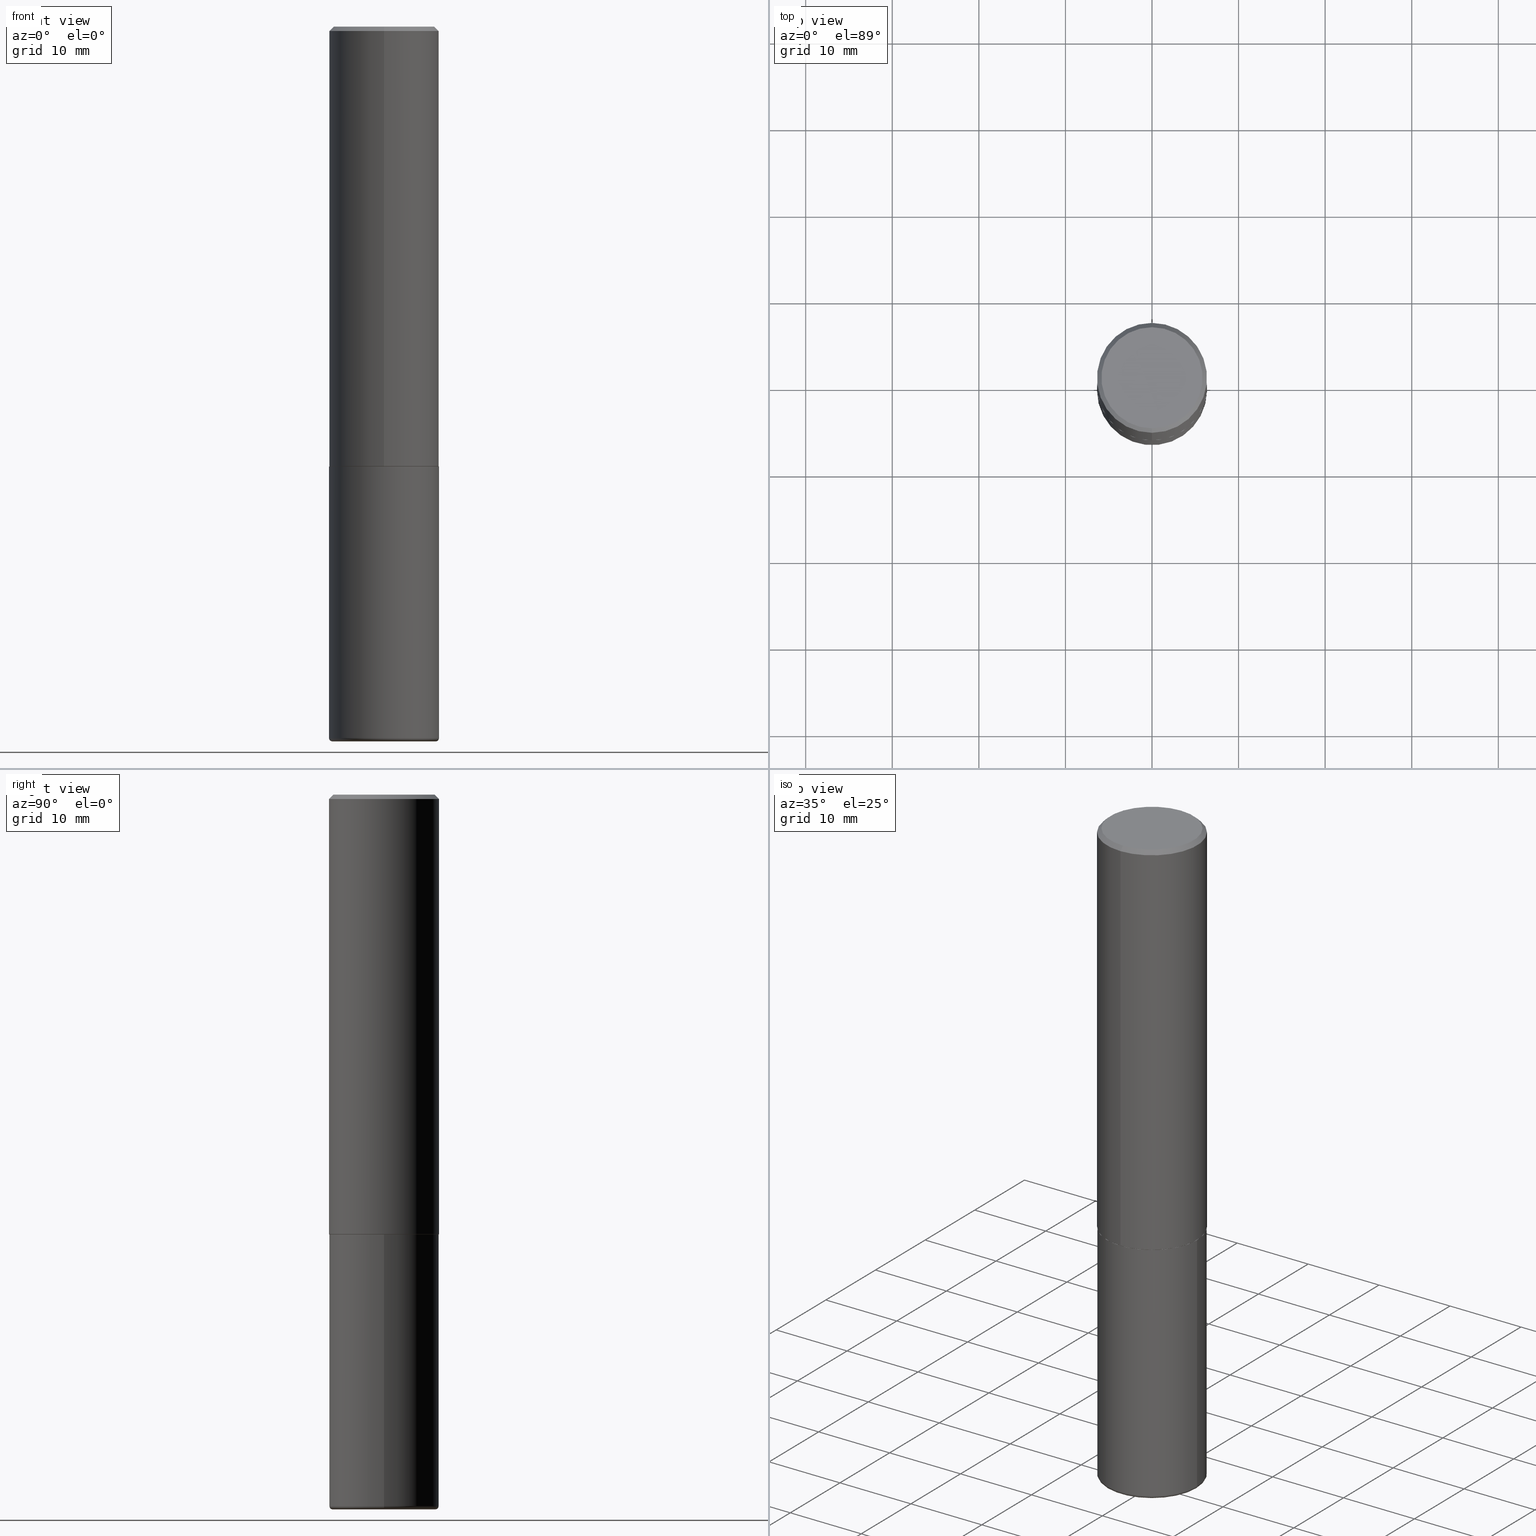
[diagram: canonical four-view strip — front | top / right | iso, engineering-drawing reading convention]
A machine part, canonical four-view strip (front | top / right | iso — engineering-drawing reading convention). The complete STEP part file that produces these views, byte-faithful:
ISO-10303-21;
HEADER;
FILE_DESCRIPTION (( 'STEP AP203' ),
    '1' );
FILE_NAME ('37191.STEP',
    '2024-03-01T21:38:02',
    ( '' ),
    ( '' ),
    'SwSTEP 2.0',
    'SolidWorks 2023',
    '' );
FILE_SCHEMA (( 'CONFIG_CONTROL_DESIGN' ));
ENDSEC;

DATA;
#1 = DATE_AND_TIME ( #61, #241 ) ;
#2 = FACE_OUTER_BOUND ( 'NONE', #95, .T. ) ;
#3 = ADVANCED_FACE ( 'NONE', ( #99 ), #407, .T. ) ;
#4 = FACE_OUTER_BOUND ( 'NONE', #375, .T. ) ;
#5 = CARTESIAN_POINT ( 'NONE',  ( 7.911091588008916622E-29, -1.129494213115757616E-14, -3.234999999999999876 ) ) ;
#6 = ADVANCED_FACE ( 'NONE', ( #174 ), #24, .T. ) ;
#7 = FACE_OUTER_BOUND ( 'NONE', #22, .T. ) ;
#8 = ORIENTED_EDGE ( 'NONE', *, *, #120, .T. ) ;
#9 = COORDINATED_UNIVERSAL_TIME_OFFSET ( 5, 0, .BEHIND. ) ;
#10 = DIRECTION ( 'NONE',  ( 1.000000000000000000, -6.982962677686266711E-15, 0.000000000000000000 ) ) ;
#11 = DIRECTION ( 'NONE',  ( -6.982962677686265133E-15, -1.000000000000000000, 3.291383124896702687E-15 ) ) ;
#12 = ORIENTED_EDGE ( 'NONE', *, *, #260, .T. ) ;
#13 =( GEOMETRIC_REPRESENTATION_CONTEXT ( 3 ) GLOBAL_UNCERTAINTY_ASSIGNED_CONTEXT ( ( #243 ) ) GLOBAL_UNIT_ASSIGNED_CONTEXT ( ( #216, #339, #225 ) ) REPRESENTATION_CONTEXT ( 'NONE', 'WORKASPACE' ) );
#14 = CARTESIAN_POINT ( 'NONE',  ( 1.745740669421566875E-15, 0.2499999999999999167, -0.02000000000000093023 ) ) ;
#15 = DIRECTION ( 'NONE',  ( 2.444914538755677752E-29, -3.492275081349073750E-15, -1.000000000000000000 ) ) ;
#16 = CARTESIAN_POINT ( 'NONE',  ( 4.887384162972599193E-29, -6.981057887616797828E-15, -1.998999999999999888 ) ) ;
#17 = EDGE_LOOP ( 'NONE', ( #228, #312, #143, #389 ) ) ;
#18 = CARTESIAN_POINT ( 'NONE',  ( 4.887384162972599193E-29, -6.981057887616797828E-15, -1.998999999999999888 ) ) ;
#19 = VECTOR ( 'NONE', #266, 39.37007874015748143 ) ;
#20 = CC_DESIGN_APPROVAL ( #55, ( #125 ) ) ;
#21 = LINE ( 'NONE', #142, #394 ) ;
#22 = EDGE_LOOP ( 'NONE', ( #376, #365, #33, #104 ) ) ;
#23 = DIRECTION ( 'NONE',  ( -6.982962677686265922E-15, -1.000000000000000000, 3.492275081349073750E-15 ) ) ;
#24 = PLANE ( 'NONE',  #80 ) ;
#25 = DIRECTION ( 'NONE',  ( -2.445468806185136597E-29, 3.491481338843145583E-15, 1.000000000000000000 ) ) ;
#26 = APPROVAL_PERSON_ORGANIZATION ( #310, #347, #170 ) ;
#27 = PERSON_AND_ORGANIZATION ( #337, #278 ) ;
#28 = PERSON_AND_ORGANIZATION ( #337, #278 ) ;
#29 = DIRECTION ( 'NONE',  ( -2.445468806185136597E-29, 3.491481338843145583E-15, 1.000000000000000000 ) ) ;
#30 = ORIENTED_EDGE ( 'NONE', *, *, #397, .F. ) ;
#31 = CALENDAR_DATE ( 2024, 1, 3 ) ;
#32 = CIRCLE ( 'NONE', #239, 0.2500000000000000000 ) ;
#33 = ORIENTED_EDGE ( 'NONE', *, *, #397, .T. ) ;
#34 = COORDINATED_UNIVERSAL_TIME_OFFSET ( 5, 0, .BEHIND. ) ;
#35 = DIRECTION ( 'NONE',  ( -2.444914538755677752E-29, 3.492275081349073750E-15, 1.000000000000000000 ) ) ;
#36 = EDGE_LOOP ( 'NONE', ( #167, #79, #285, #295 ) ) ;
#37 = DIRECTION ( 'NONE',  ( 1.000000000000000000, -6.982962677686266711E-15, 0.000000000000000000 ) ) ;
#38 = DIRECTION ( 'NONE',  ( -2.444914538755677752E-29, 3.492275081349073750E-15, 1.000000000000000000 ) ) ;
#39 = ORIENTED_EDGE ( 'NONE', *, *, #333, .T. ) ;
#40 = EDGE_CURVE ( 'NONE', #237, #353, #32, .T. ) ;
#41 = CONICAL_SURFACE ( 'NONE', #373, 0.2500000000000000000, 0.7853981633974468357 ) ;
#42 = AXIS2_PLACEMENT_3D ( 'NONE', #89, #212, #244 ) ;
#43 = DIRECTION ( 'NONE',  ( 6.982962677686265922E-15, 1.000000000000000000, -3.500180241882337261E-15 ) ) ;
#44 = ORIENTED_EDGE ( 'NONE', *, *, #307, .T. ) ;
#45 = APPROVAL_DATE_TIME ( #153, #280 ) ;
#46 = CARTESIAN_POINT ( 'NONE',  ( 0.000000000000000000, 0.000000000000000000, 0.000000000000000000 ) ) ;
#47 = DIRECTION ( 'NONE',  ( -2.445468806185136597E-29, 3.491481338843145583E-15, 1.000000000000000000 ) ) ;
#48 = EDGE_CURVE ( 'NONE', #288, #229, #150, .T. ) ;
#49 = ORIENTED_EDGE ( 'NONE', *, *, #48, .T. ) ;
#50 = LINE ( 'NONE', #403, #274 ) ;
#51 = PRODUCT_RELATED_PRODUCT_CATEGORY ( 'detail', '', ( #406 ) ) ;
#52 = DIRECTION ( 'NONE',  ( -2.444914538755677752E-29, 3.492275081349073750E-15, 1.000000000000000000 ) ) ;
#53 = CARTESIAN_POINT ( 'NONE',  ( 0.000000000000000000, 0.000000000000000000, 0.000000000000000000 ) ) ;
#54 = AXIS2_PLACEMENT_3D ( 'NONE', #16, #242, #332 ) ;
#55 = APPROVAL ( #98, 'UNSPECIFIED' ) ;
#56 = DIRECTION ( 'NONE',  ( -2.445468806185136597E-29, 3.491481338843145583E-15, 1.000000000000000000 ) ) ;
#57 = ADVANCED_FACE ( 'NONE', ( #345 ), #41, .T. ) ;
#58 = PERSON_AND_ORGANIZATION ( #337, #278 ) ;
#59 = AXIS2_PLACEMENT_3D ( 'NONE', #256, #15, #43 ) ;
#60 = VECTOR ( 'NONE', #131, 39.37007874015748143 ) ;
#61 = CALENDAR_DATE ( 2024, 1, 3 ) ;
#62 = DIRECTION ( 'NONE',  ( -2.444914538755678032E-29, 3.492275081349073750E-15, 1.000000000000000000 ) ) ;
#63 = ORIENTED_EDGE ( 'NONE', *, *, #206, .F. ) ;
#64 = PERSON_AND_ORGANIZATION_ROLE ( 'design_owner' ) ;
#65 = CARTESIAN_POINT ( 'NONE',  ( 0.2350000000000000144, -1.298831058049649931E-14, -3.250000000000000444 ) ) ;
#66 = VECTOR ( 'NONE', #292, 39.37007874015748143 ) ;
#67 = EDGE_CURVE ( 'NONE', #191, #196, #224, .T. ) ;
#68 = EDGE_LOOP ( 'NONE', ( #269, #359 ) ) ;
#69 = ORIENTED_EDGE ( 'NONE', *, *, #200, .F. ) ;
#70 = CARTESIAN_POINT ( 'NONE',  ( 4.889829077511355503E-29, -6.984550162698146711E-15, -2.000000000000000000 ) ) ;
#71 = ORIENTED_EDGE ( 'NONE', *, *, #253, .F. ) ;
#72 = APPROVAL_DATE_TIME ( #1, #55 ) ;
#73 = AXIS2_PLACEMENT_3D ( 'NONE', #179, #25, #121 ) ;
#74 = DIRECTION ( 'NONE',  ( 2.444914538755677191E-29, -3.492275081349073750E-15, -1.000000000000000000 ) ) ;
#75 = ORIENTED_EDGE ( 'NONE', *, *, #48, .F. ) ;
#76 = CARTESIAN_POINT ( 'NONE',  ( 1.776356839400251254E-15, 0.2500000000000001110, -8.730687703372688319E-16 ) ) ;
#77 = VERTEX_POINT ( 'NONE', #190 ) ;
#78 = DIRECTION ( 'NONE',  ( 6.982962677686265922E-15, 1.000000000000000000, -3.492275081349073750E-15 ) ) ;
#79 = ORIENTED_EDGE ( 'NONE', *, *, #148, .T. ) ;
#80 = AXIS2_PLACEMENT_3D ( 'NONE', #218, #211, #335 ) ;
#81 = TOROIDAL_SURFACE ( 'NONE', #246, 0.2349999999999999867, 0.01500000000000042098 ) ;
#82 = DIRECTION ( 'NONE',  ( -2.445468806185136877E-29, 3.491481338843145188E-15, 1.000000000000000000 ) ) ;
#83 = CARTESIAN_POINT ( 'NONE',  ( 1.776356839400276103E-15, 0.2499999999999933109, -1.999000000000000776 ) ) ;
#84 = ADVANCED_FACE ( 'NONE', ( #4 ), #284, .F. ) ;
#85 = CARTESIAN_POINT ( 'NONE',  ( -1.738757706743831162E-15, -0.2490000000000069935, -1.999999999999999112 ) ) ;
#86 = VECTOR ( 'NONE', #62, 39.37007874015748143 ) ;
#87 = LENGTH_MEASURE_WITH_UNIT ( LENGTH_MEASURE( 0.02539999999999999897 ), #117 );
#88 = AXIS2_PLACEMENT_3D ( 'NONE', #319, #173, #357 ) ;
#89 = CARTESIAN_POINT ( 'NONE',  ( 4.889829077511355503E-29, -6.984550162698146711E-15, -2.000000000000000000 ) ) ;
#90 = PERSON_AND_ORGANIZATION ( #337, #278 ) ;
#91 = CC_DESIGN_PERSON_AND_ORGANIZATION_ASSIGNMENT ( #58, #249, ( #125 ) ) ;
#92 = DIRECTION ( 'NONE',  ( 0.000000000000000000, 0.000000000000000000, 1.000000000000000000 ) ) ;
#93 = LOCAL_TIME ( 16, 38, 2.000000000000000000, #219 ) ;
#94 = DIRECTION ( 'NONE',  ( 6.982962677686265922E-15, 1.000000000000000000, -3.500180241882337261E-15 ) ) ;
#95 = EDGE_LOOP ( 'NONE', ( #395, #383, #12, #100 ) ) ;
#96 = PERSON_AND_ORGANIZATION_ROLE ( 'creator' ) ;
#97 = CARTESIAN_POINT ( 'NONE',  ( 4.889829077511355503E-29, -6.984550162698146711E-15, -2.000000000000000000 ) ) ;
#98 = APPROVAL_STATUS ( 'not_yet_approved' ) ;
#99 = FACE_OUTER_BOUND ( 'NONE', #414, .T. ) ;
#100 = ORIENTED_EDGE ( 'NONE', *, *, #162, .F. ) ;
#101 = CARTESIAN_POINT ( 'NONE',  ( 4.889829077511355503E-29, -6.984550162698146711E-15, -2.000000000000000000 ) ) ;
#102 = VERTEX_POINT ( 'NONE', #127 ) ;
#103 = DIRECTION ( 'NONE',  ( 1.000000000000000000, -6.982962677686270655E-15, 0.000000000000000000 ) ) ;
#104 = ORIENTED_EDGE ( 'NONE', *, *, #247, .F. ) ;
#105 = AXIS2_PLACEMENT_3D ( 'NONE', #183, #275, #276 ) ;
#106 = FACE_OUTER_BOUND ( 'NONE', #17, .T. ) ;
#107 = VERTEX_POINT ( 'NONE', #65 ) ;
#108 = EDGE_CURVE ( 'NONE', #102, #272, #135, .T. ) ;
#109 = FACE_OUTER_BOUND ( 'NONE', #387, .T. ) ;
#110 = ORIENTED_EDGE ( 'NONE', *, *, #194, .T. ) ;
#111 = FACE_OUTER_BOUND ( 'NONE', #294, .T. ) ;
#112 = ORIENTED_EDGE ( 'NONE', *, *, #200, .T. ) ;
#113 = CIRCLE ( 'NONE', #88, 0.01500000000000042098 ) ;
#114 = DIRECTION ( 'NONE',  ( -6.982962677686265922E-15, -1.000000000000000000, 3.492275081349073750E-15 ) ) ;
#115 = ADVANCED_FACE ( 'NONE', ( #2 ), #207, .T. ) ;
#116 = CARTESIAN_POINT ( 'NONE',  ( -1.646519519465166770E-15, -0.2299999999999998990, 9.015816167589595013E-16 ) ) ;
#117 =( LENGTH_UNIT ( ) NAMED_UNIT ( * ) SI_UNIT ( $, .METRE. ) );
#118 = CARTESIAN_POINT ( 'NONE',  ( 0.000000000000000000, 0.000000000000000000, 0.000000000000000000 ) ) ;
#119 = AXIS2_PLACEMENT_3D ( 'NONE', #101, #236, #306 ) ;
#120 = EDGE_CURVE ( 'NONE', #353, #237, #367, .T. ) ;
#121 = DIRECTION ( 'NONE',  ( 1.000000000000000000, -6.982962677686270655E-15, 0.000000000000000000 ) ) ;
#122 = APPLICATION_PROTOCOL_DEFINITION ( 'international standard', 'config_control_design', 1994, #149 ) ;
#123 = EDGE_CURVE ( 'NONE', #130, #107, #308, .T. ) ;
#124 = DIRECTION ( 'NONE',  ( 1.000000000000000000, -6.982962677686269077E-15, 0.000000000000000000 ) ) ;
#125 = PRODUCT_DEFINITION_FORMATION_WITH_SPECIFIED_SOURCE ( 'ANY', '', #406, .NOT_KNOWN. ) ;
#126 = ORIENTED_EDGE ( 'NONE', *, *, #291, .T. ) ;
#127 = CARTESIAN_POINT ( 'NONE',  ( 1.675911042644703774E-15, 0.2299999999999998990, -7.048649206616136781E-16 ) ) ;
#128 = CIRCLE ( 'NONE', #105, 0.2500000000000000000 ) ;
#129 = LINE ( 'NONE', #14, #166 ) ;
#130 = VERTEX_POINT ( 'NONE', #134 ) ;
#131 = DIRECTION ( 'NONE',  ( 5.024295867788490741E-15, 0.7071067811866103003, 0.7071067811864847341 ) ) ;
#132 = ORIENTED_EDGE ( 'NONE', *, *, #220, .T. ) ;
#133 = CARTESIAN_POINT ( 'NONE',  ( 0.000000000000000000, 0.000000000000000000, 0.000000000000000000 ) ) ;
#134 = CARTESIAN_POINT ( 'NONE',  ( -0.2350000000000000144, -9.598062106980653841E-15, -3.250000000000000444 ) ) ;
#135 = CIRCLE ( 'NONE', #384, 0.2299999999999998990 ) ;
#136 = AXIS2_PLACEMENT_3D ( 'NONE', #405, #402, #145 ) ;
#137 = CARTESIAN_POINT ( 'NONE',  ( -0.2500000000000002220, -9.518585291757322543E-15, -3.234999999999999876 ) ) ;
#138 = CC_DESIGN_DATE_AND_TIME_ASSIGNMENT ( #287, #223, ( #409 ) ) ;
#139 = CYLINDRICAL_SURFACE ( 'NONE', #283, 0.2500000000000000000 ) ;
#140 = ORIENTED_EDGE ( 'NONE', *, *, #182, .T. ) ;
#141 = ADVANCED_BREP_SHAPE_REPRESENTATION ( '37191', ( #289, #154, #331 ), #13 ) ;
#142 = CARTESIAN_POINT ( 'NONE',  ( -1.715124499442882299E-15, -0.2500000000000000555, -0.01999999999999918163 ) ) ;
#143 = ORIENTED_EDGE ( 'NONE', *, *, #206, .T. ) ;
#144 = AXIS2_PLACEMENT_3D ( 'NONE', #118, #56, #336 ) ;
#145 = DIRECTION ( 'NONE',  ( 1.000000000000000000, -6.982962677686201235E-15, 0.000000000000000000 ) ) ;
#146 = CYLINDRICAL_SURFACE ( 'NONE', #144, 0.2500000000000000000 ) ;
#147 = DIRECTION ( 'NONE',  ( -2.444914538755677191E-29, 3.492275081349073750E-15, 1.000000000000000000 ) ) ;
#148 = EDGE_CURVE ( 'NONE', #318, #316, #355, .T. ) ;
#149 = APPLICATION_CONTEXT ( 'configuration controlled 3d designs of mechanical parts and assemblies' ) ;
#150 = CIRCLE ( 'NONE', #164, 0.2500000000000000555 ) ;
#151 = CARTESIAN_POINT ( 'NONE',  ( 1.745740669421566875E-15, 0.2499999999999999167, -0.02000000000000093023 ) ) ;
#152 = AXIS2_PLACEMENT_3D ( 'NONE', #329, #271, #232 ) ;
#153 = DATE_AND_TIME ( #201, #93 ) ;
#154 = MANIFOLD_SOLID_BREP ( 'Body-Move/Copy2[2]', #392 ) ;
#155 = ADVANCED_FACE ( 'NONE', ( #111 ), #81, .T. ) ;
#156 = DIRECTION ( 'NONE',  ( 1.000000000000000000, 0.000000000000000000, 0.000000000000000000 ) ) ;
#157 = DIRECTION ( 'NONE',  ( -2.445468806185136597E-29, 3.491481338843145583E-15, 1.000000000000000000 ) ) ;
#158 = EDGE_LOOP ( 'NONE', ( #320, #199, #165, #39 ) ) ;
#159 = CIRCLE ( 'NONE', #119, 0.2489999999999999991 ) ;
#160 = DIRECTION ( 'NONE',  ( -6.982962677686265922E-15, -1.000000000000000000, 3.492275081349073750E-15 ) ) ;
#161 = ORIENTED_EDGE ( 'NONE', *, *, #307, .F. ) ;
#162 = EDGE_CURVE ( 'NONE', #102, #316, #129, .T. ) ;
#163 = LINE ( 'NONE', #363, #240 ) ;
#164 = AXIS2_PLACEMENT_3D ( 'NONE', #413, #157, #124 ) ;
#165 = ORIENTED_EDGE ( 'NONE', *, *, #162, .T. ) ;
#166 = VECTOR ( 'NONE', #360, 39.37007874015748143 ) ;
#167 = ORIENTED_EDGE ( 'NONE', *, *, #327, .T. ) ;
#168 = CC_DESIGN_APPROVAL ( #280, ( #409 ) ) ;
#169 = CARTESIAN_POINT ( 'NONE',  ( 7.947773620101696182E-29, -1.134731435124022600E-14, -3.250000000000000444 ) ) ;
#170 = APPROVAL_ROLE ( '' ) ;
#171 = PRODUCT_DEFINITION ( 'UNKNOWN', '', #125, #187 ) ;
#172 = DIRECTION ( 'NONE',  ( 1.000000000000000000, -6.982962677686269077E-15, 0.000000000000000000 ) ) ;
#173 = DIRECTION ( 'NONE',  ( 7.105427357601001859E-15, 1.000000000000000000, -3.491481338843145583E-15 ) ) ;
#174 = FACE_OUTER_BOUND ( 'NONE', #380, .T. ) ;
#175 = EDGE_LOOP ( 'NONE', ( #71, #69 ) ) ;
#176 = FACE_OUTER_BOUND ( 'NONE', #68, .T. ) ;
#177 = ADVANCED_FACE ( 'NONE', ( #176 ), #230, .F. ) ;
#178 = PLANE ( 'NONE',  #314 ) ;
#179 = CARTESIAN_POINT ( 'NONE',  ( 7.947773620101696182E-29, -1.134731435124022600E-14, -3.250000000000000444 ) ) ;
#180 = CARTESIAN_POINT ( 'NONE',  ( 4.890937612370273194E-29, -6.982962677686291165E-15, -2.000000000000000000 ) ) ;
#181 = AXIS2_PLACEMENT_3D ( 'NONE', #46, #38, #270 ) ;
#182 = EDGE_CURVE ( 'NONE', #229, #353, #163, .T. ) ;
#183 = CARTESIAN_POINT ( 'NONE',  ( 4.889829077511369061E-31, -6.984550162698166284E-17, -0.02000000000000005593 ) ) ;
#184 = CALENDAR_DATE ( 2024, 1, 3 ) ;
#185 = AXIS2_PLACEMENT_3D ( 'NONE', #169, #396, #103 ) ;
#186 = ADVANCED_FACE ( 'NONE', ( #106 ), #139, .T. ) ;
#187 = DESIGN_CONTEXT ( 'detailed design', #149, 'design' ) ;
#188 = PRODUCT_DEFINITION_SHAPE ( 'NONE', 'NONE',  #171 ) ;
#189 = APPROVAL_DATE_TIME ( #250, #347 ) ;
#190 = CARTESIAN_POINT ( 'NONE',  ( 1.772804125721499264E-15, 0.2489999999999930047, -2.000000000000000888 ) ) ;
#191 = VERTEX_POINT ( 'NONE', #205 ) ;
#192 = CALENDAR_DATE ( 2024, 1, 3 ) ;
#193 = CARTESIAN_POINT ( 'NONE',  ( -2.404777551521915738E-45, 3.434944079330397096E-31, 9.835834804867292393E-17 ) ) ;
#194 = EDGE_CURVE ( 'NONE', #77, #318, #328, .T. ) ;
#195 = ORIENTED_EDGE ( 'NONE', *, *, #148, .F. ) ;
#196 = VERTEX_POINT ( 'NONE', #325 ) ;
#197 = DIRECTION ( 'NONE',  ( -6.982962677686265133E-15, -1.000000000000000000, 3.291383124896702687E-15 ) ) ;
#198 = CIRCLE ( 'NONE', #54, 0.2500000000000002220 ) ;
#199 = ORIENTED_EDGE ( 'NONE', *, *, #108, .F. ) ;
#200 = EDGE_CURVE ( 'NONE', #77, #326, #293, .T. ) ;
#201 = CALENDAR_DATE ( 2024, 1, 3 ) ;
#202 = DIRECTION ( 'NONE',  ( 1.000000000000000000, -6.982962677686266711E-15, 4.876176775795935793E-29 ) ) ;
#203 = DIMENSIONAL_EXPONENTS ( 1.000000000000000000, 0.000000000000000000, 0.000000000000000000, 0.000000000000000000, 0.000000000000000000, 0.000000000000000000, 0.000000000000000000 ) ;
#204 = DIRECTION ( 'NONE',  ( -2.445468806185136597E-29, 3.491481338843145583E-15, 1.000000000000000000 ) ) ;
#205 = CARTESIAN_POINT ( 'NONE',  ( -1.745740669421519346E-15, -0.2500000000000072164, -1.998999999999999000 ) ) ;
#206 = EDGE_CURVE ( 'NONE', #288, #237, #300, .T. ) ;
#207 = CONICAL_SURFACE ( 'NONE', #59, 0.2500000000000000000, 0.7853981633974468357 ) ;
#208 = AXIS2_PLACEMENT_3D ( 'NONE', #53, #368, #399 ) ;
#209 = DIRECTION ( 'NONE',  ( -6.982962677686265922E-15, -1.000000000000000000, 3.500180241882337261E-15 ) ) ;
#210 = FACE_OUTER_BOUND ( 'NONE', #36, .T. ) ;
#211 = DIRECTION ( 'NONE',  ( 2.438088387897960049E-29, -3.491481338843145188E-15, -1.000000000000000000 ) ) ;
#212 = DIRECTION ( 'NONE',  ( -2.444914538755677752E-29, 3.492275081349073750E-15, 1.000000000000000000 ) ) ;
#213 = ADVANCED_FACE ( 'NONE', ( #7 ), #352, .T. ) ;
#214 = AXIS2_PLACEMENT_3D ( 'NONE', #238, #74, #78 ) ;
#215 = CIRCLE ( 'NONE', #251, 0.2500000000000002220 ) ;
#216 =( CONVERSION_BASED_UNIT ( 'INCH', #87 ) LENGTH_UNIT ( ) NAMED_UNIT ( #203 ) );
#217 = DIRECTION ( 'NONE',  ( -2.444914538755677752E-29, 3.492275081349073750E-15, 1.000000000000000000 ) ) ;
#218 = CARTESIAN_POINT ( 'NONE',  ( 2.671324608371788067E-29, -1.890348965286478772E-14, -3.250000000000000444 ) ) ;
#219 = COORDINATED_UNIVERSAL_TIME_OFFSET ( 5, 0, .BEHIND. ) ;
#220 = EDGE_CURVE ( 'NONE', #130, #229, #113, .T. ) ;
#221 = APPROVAL_ROLE ( '' ) ;
#222 = CC_DESIGN_PERSON_AND_ORGANIZATION_ASSIGNMENT ( #28, #96, ( #125 ) ) ;
#223 = DATE_TIME_ROLE ( 'classification_date' ) ;
#224 = LINE ( 'NONE', #226, #86 ) ;
#225 =( NAMED_UNIT ( * ) SI_UNIT ( $, .STERADIAN. ) SOLID_ANGLE_UNIT ( ) );
#226 = CARTESIAN_POINT ( 'NONE',  ( -1.745740669421567467E-15, -0.2500000000000001110, 8.730687703372688319E-16 ) ) ;
#227 = LOCAL_TIME ( 16, 38, 2.000000000000000000, #34 ) ;
#228 = ORIENTED_EDGE ( 'NONE', *, *, #182, .F. ) ;
#229 = VERTEX_POINT ( 'NONE', #137 ) ;
#230 = PLANE ( 'NONE',  #214 ) ;
#231 = ORIENTED_EDGE ( 'NONE', *, *, #67, .T. ) ;
#232 = DIRECTION ( 'NONE',  ( 1.000000000000000000, -6.982962677686266711E-15, 4.883557194083112901E-29 ) ) ;
#233 = CIRCLE ( 'NONE', #73, 0.2350000000000000144 ) ;
#234 = ORIENTED_EDGE ( 'NONE', *, *, #40, .T. ) ;
#235 = CARTESIAN_POINT ( 'NONE',  ( 0.000000000000000000, 0.000000000000000000, 0.000000000000000000 ) ) ;
#236 = DIRECTION ( 'NONE',  ( -2.444914538755677752E-29, 3.492275081349073750E-15, 1.000000000000000000 ) ) ;
#237 = VERTEX_POINT ( 'NONE', #322 ) ;
#238 = CARTESIAN_POINT ( 'NONE',  ( 1.606081415867840476E-15, 0.2299999999999998990, -7.540440946859502079E-16 ) ) ;
#239 = AXIS2_PLACEMENT_3D ( 'NONE', #180, #29, #37 ) ;
#240 = VECTOR ( 'NONE', #82, 39.37007874015748143 ) ;
#241 = LOCAL_TIME ( 16, 38, 2.000000000000000000, #344 ) ;
#242 = DIRECTION ( 'NONE',  ( -2.444914538755677752E-29, 3.492275081349073750E-15, 1.000000000000000000 ) ) ;
#243 = UNCERTAINTY_MEASURE_WITH_UNIT (LENGTH_MEASURE( 1.000000000000000082E-05 ), #216, 'distance_accuracy_value', 'NONE');
#244 = DIRECTION ( 'NONE',  ( -6.982962677686265133E-15, -1.000000000000000000, 3.291383124896702687E-15 ) ) ;
#245 = ADVANCED_FACE ( 'NONE', ( #109 ), #297, .T. ) ;
#246 = AXIS2_PLACEMENT_3D ( 'NONE', #393, #388, #362 ) ;
#247 = EDGE_CURVE ( 'NONE', #229, #288, #400, .T. ) ;
#248 = CARTESIAN_POINT ( 'NONE',  ( 4.889829077511369061E-31, -6.984550162698166284E-17, -0.02000000000000005593 ) ) ;
#249 = PERSON_AND_ORGANIZATION_ROLE ( 'design_supplier' ) ;
#250 = DATE_AND_TIME ( #192, #258 ) ;
#251 = AXIS2_PLACEMENT_3D ( 'NONE', #18, #52, #279 ) ;
#252 = APPROVAL_STATUS ( 'not_yet_approved' ) ;
#253 = EDGE_CURVE ( 'NONE', #326, #77, #159, .T. ) ;
#254 = ORIENTED_EDGE ( 'NONE', *, *, #333, .F. ) ;
#255 = APPROVAL_STATUS ( 'not_yet_approved' ) ;
#256 = CARTESIAN_POINT ( 'NONE',  ( 4.889829077511369061E-31, -6.984550162698166284E-17, -0.02000000000000005593 ) ) ;
#257 = EDGE_LOOP ( 'NONE', ( #49, #140, #262, #63 ) ) ;
#258 = LOCAL_TIME ( 16, 38, 2.000000000000000000, #356 ) ;
#259 = ORIENTED_EDGE ( 'NONE', *, *, #291, .F. ) ;
#260 = EDGE_CURVE ( 'NONE', #196, #316, #386, .T. ) ;
#261 = DIRECTION ( 'NONE',  ( -2.445468806185136597E-29, 3.491481338843145583E-15, 1.000000000000000000 ) ) ;
#262 = ORIENTED_EDGE ( 'NONE', *, *, #40, .F. ) ;
#263 = CC_DESIGN_PERSON_AND_ORGANIZATION_ASSIGNMENT ( #90, #377, ( #409 ) ) ;
#264 = CARTESIAN_POINT ( 'NONE',  ( 4.890937612370273194E-29, -6.982962677686291165E-15, -2.000000000000000000 ) ) ;
#265 = DATE_AND_TIME ( #31, #358 ) ;
#266 = DIRECTION ( 'NONE',  ( -2.444914538755678032E-29, 3.492275081349073750E-15, 1.000000000000000000 ) ) ;
#267 = AXIS2_PLACEMENT_3D ( 'NONE', #70, #398, #197 ) ;
#268 = APPROVAL_PERSON_ORGANIZATION ( #315, #55, #221 ) ;
#269 = ORIENTED_EDGE ( 'NONE', *, *, #108, .T. ) ;
#270 = DIRECTION ( 'NONE',  ( -6.982962677686266711E-15, -1.000000000000000000, 3.492275081349073750E-15 ) ) ;
#271 = DIRECTION ( 'NONE',  ( -2.445468806185136597E-29, 3.491481338843145583E-15, 1.000000000000000000 ) ) ;
#272 = VERTEX_POINT ( 'NONE', #116 ) ;
#273 = CYLINDRICAL_SURFACE ( 'NONE', #208, 0.2500000000000001110 ) ;
#274 = VECTOR ( 'NONE', #364, 39.37007874015748143 ) ;
#275 = DIRECTION ( 'NONE',  ( -2.444914538755677752E-29, 3.492275081349073750E-15, 1.000000000000000000 ) ) ;
#276 = DIRECTION ( 'NONE',  ( -6.982962677686265922E-15, -1.000000000000000000, 3.500180241882337261E-15 ) ) ;
#277 = EDGE_CURVE ( 'NONE', #272, #102, #303, .T. ) ;
#278 = ORGANIZATION ( 'UNSPECIFIED', 'UNSPECIFIED', '' ) ;
#279 = DIRECTION ( 'NONE',  ( -6.982962677686266711E-15, -1.000000000000000000, 3.278217592397113101E-15 ) ) ;
#280 = APPROVAL ( #255, 'UNSPECIFIED' ) ;
#281 = DATE_TIME_ROLE ( 'creation_date' ) ;
#282 = MECHANICAL_CONTEXT ( 'NONE', #286, 'mechanical' ) ;
#283 = AXIS2_PLACEMENT_3D ( 'NONE', #235, #204, #202 ) ;
#284 = PLANE ( 'NONE',  #313 ) ;
#285 = ORIENTED_EDGE ( 'NONE', *, *, #260, .F. ) ;
#286 = APPLICATION_CONTEXT ( 'configuration controlled 3d designs of mechanical parts and assemblies' ) ;
#287 = DATE_AND_TIME ( #184, #227 ) ;
#288 = VERTEX_POINT ( 'NONE', #301 ) ;
#289 = MANIFOLD_SOLID_BREP ( 'Body-Move/Copy2[1]', #330 ) ;
#290 = DIRECTION ( 'NONE',  ( 2.444914538755677752E-29, -3.492275081349073750E-15, -1.000000000000000000 ) ) ;
#291 = EDGE_CURVE ( 'NONE', #107, #130, #233, .T. ) ;
#292 = DIRECTION ( 'NONE',  ( -2.445468806185136877E-29, 3.491481338843145188E-15, 1.000000000000000000 ) ) ;
#293 = CIRCLE ( 'NONE', #267, 0.2489999999999999991 ) ;
#294 = EDGE_LOOP ( 'NONE', ( #126, #132, #75, #30 ) ) ;
#295 = ORIENTED_EDGE ( 'NONE', *, *, #67, .F. ) ;
#296 = CARTESIAN_POINT ( 'NONE',  ( 1.769251412042698169E-15, 0.2489999999999930047, -2.000000000000000888 ) ) ;
#297 = CYLINDRICAL_SURFACE ( 'NONE', #181, 0.2500000000000001110 ) ;
#298 = AXIS2_PLACEMENT_3D ( 'NONE', #97, #317, #11 ) ;
#299 = AXIS2_PLACEMENT_3D ( 'NONE', #5, #261, #172 ) ;
#300 = LINE ( 'NONE', #390, #66 ) ;
#301 = CARTESIAN_POINT ( 'NONE',  ( 0.2500000000000002220, -1.304068280057914284E-14, -3.234999999999999876 ) ) ;
#302 = FACE_OUTER_BOUND ( 'NONE', #175, .T. ) ;
#303 = CIRCLE ( 'NONE', #342, 0.2299999999999998990 ) ;
#304 = DIRECTION ( 'NONE',  ( -2.444914538755677752E-29, 3.492275081349073750E-15, 1.000000000000000000 ) ) ;
#305 = FACE_OUTER_BOUND ( 'NONE', #321, .T. ) ;
#306 = DIRECTION ( 'NONE',  ( -6.982962677686265133E-15, -1.000000000000000000, 3.291383124896702687E-15 ) ) ;
#307 = EDGE_CURVE ( 'NONE', #318, #191, #198, .T. ) ;
#308 = CIRCLE ( 'NONE', #185, 0.2350000000000000144 ) ;
#309 = CC_DESIGN_APPROVAL ( #347, ( #171 ) ) ;
#310 = PERSON_AND_ORGANIZATION ( #337, #278 ) ;
#311 = PERSON_AND_ORGANIZATION_ROLE ( 'creator' ) ;
#312 = ORIENTED_EDGE ( 'NONE', *, *, #247, .T. ) ;
#313 = AXIS2_PLACEMENT_3D ( 'NONE', #417, #378, #349 ) ;
#314 = AXIS2_PLACEMENT_3D ( 'NONE', #334, #147, #23 ) ;
#315 = PERSON_AND_ORGANIZATION ( #337, #278 ) ;
#316 = VERTEX_POINT ( 'NONE', #151 ) ;
#317 = DIRECTION ( 'NONE',  ( -2.444914538755677752E-29, 3.492275081349073750E-15, 1.000000000000000000 ) ) ;
#318 = VERTEX_POINT ( 'NONE', #83 ) ;
#319 = CARTESIAN_POINT ( 'NONE',  ( -0.2349999999999999867, -9.625166702121340032E-15, -3.234999999999999876 ) ) ;
#320 = ORIENTED_EDGE ( 'NONE', *, *, #391, .F. ) ;
#321 = EDGE_LOOP ( 'NONE', ( #354, #112, #348, #161 ) ) ;
#322 = CARTESIAN_POINT ( 'NONE',  ( 0.2500000000000000000, -8.728703347107857054E-15, -2.000000000000000000 ) ) ;
#323 = CC_DESIGN_SECURITY_CLASSIFICATION ( #409, ( #125 ) ) ;
#324 = APPLICATION_PROTOCOL_DEFINITION ( 'international standard', 'config_control_design', 1994, #286 ) ;
#325 = CARTESIAN_POINT ( 'NONE',  ( -1.715124499442882299E-15, -0.2500000000000000555, -0.01999999999999918163 ) ) ;
#326 = VERTEX_POINT ( 'NONE', #85 ) ;
#327 = EDGE_CURVE ( 'NONE', #191, #318, #215, .T. ) ;
#328 = LINE ( 'NONE', #296, #60 ) ;
#329 = CARTESIAN_POINT ( 'NONE',  ( 7.911091588008916622E-29, -1.129494213115757616E-14, -3.234999999999999876 ) ) ;
#330 = CLOSED_SHELL ( 'NONE', ( #404, #155, #84, #186, #213, #6 ) ) ;
#331 = AXIS2_PLACEMENT_3D ( 'NONE', #133, #92, #156 ) ;
#332 = DIRECTION ( 'NONE',  ( -6.982962677686266711E-15, -1.000000000000000000, 3.278217592397113101E-15 ) ) ;
#333 = EDGE_CURVE ( 'NONE', #316, #196, #128, .T. ) ;
#334 = CARTESIAN_POINT ( 'NONE',  ( 4.889829077511355503E-29, -6.984550162698146711E-15, -2.000000000000000000 ) ) ;
#335 = DIRECTION ( 'NONE',  ( -1.000000000000000000, 6.982962677686265922E-15, -4.876176775795935793E-29 ) ) ;
#336 = DIRECTION ( 'NONE',  ( 1.000000000000000000, -6.982962677686266711E-15, 4.876176775795935793E-29 ) ) ;
#337 = PERSON ( 'UNSPECIFIED', 'UNSPECIFIED', 'UNSPECIFIED', ('UNSPECIFIED'), ('UNSPECIFIED'), ('UNSPECIFIED') ) ;
#338 = CONICAL_SURFACE ( 'NONE', #42, 0.2489999999999999991, 0.7853981633975336552 ) ;
#339 =( NAMED_UNIT ( * ) PLANE_ANGLE_UNIT ( ) SI_UNIT ( $, .RADIAN. ) );
#340 = DIRECTION ( 'NONE',  ( -4.851104656540956386E-15, -0.7071067811865489050, -0.7071067811865461294 ) ) ;
#341 = ADVANCED_FACE ( 'NONE', ( #305 ), #338, .T. ) ;
#342 = AXIS2_PLACEMENT_3D ( 'NONE', #370, #217, #114 ) ;
#343 = CC_DESIGN_PERSON_AND_ORGANIZATION_ASSIGNMENT ( #412, #64, ( #406 ) ) ;
#344 = COORDINATED_UNIVERSAL_TIME_OFFSET ( 5, 0, .BEHIND. ) ;
#345 = FACE_OUTER_BOUND ( 'NONE', #158, .T. ) ;
#346 = ORIENTED_EDGE ( 'NONE', *, *, #372, .F. ) ;
#347 = APPROVAL ( #252, 'UNSPECIFIED' ) ;
#348 = ORIENTED_EDGE ( 'NONE', *, *, #372, .T. ) ;
#349 = DIRECTION ( 'NONE',  ( -1.000000000000000000, 6.982962677686265922E-15, -4.876176775795935793E-29 ) ) ;
#350 = ORIENTED_EDGE ( 'NONE', *, *, #327, .F. ) ;
#351 = AXIS2_PLACEMENT_3D ( 'NONE', #264, #47, #10 ) ;
#352 = TOROIDAL_SURFACE ( 'NONE', #152, 0.2349999999999999867, 0.01500000000000042098 ) ;
#353 = VERTEX_POINT ( 'NONE', #410 ) ;
#354 = ORIENTED_EDGE ( 'NONE', *, *, #194, .F. ) ;
#355 = LINE ( 'NONE', #76, #19 ) ;
#356 = COORDINATED_UNIVERSAL_TIME_OFFSET ( 5, 0, .BEHIND. ) ;
#357 = DIRECTION ( 'NONE',  ( -1.000000000000000000, 7.105427357601050768E-15, 0.000000000000000000 ) ) ;
#358 = LOCAL_TIME ( 16, 38, 2.000000000000000000, #9 ) ;
#359 = ORIENTED_EDGE ( 'NONE', *, *, #277, .T. ) ;
#360 = DIRECTION ( 'NONE',  ( 4.937700262164540154E-15, 0.7071067811865440200, -0.7071067811865510144 ) ) ;
#361 = CC_DESIGN_PERSON_AND_ORGANIZATION_ASSIGNMENT ( #416, #311, ( #171 ) ) ;
#362 = DIRECTION ( 'NONE',  ( 1.000000000000000000, -6.982962677686266711E-15, 4.883557194083112901E-29 ) ) ;
#363 = CARTESIAN_POINT ( 'NONE',  ( -0.2500000000000000000, 1.776356839400250465E-15, -1.229733772563726445E-29 ) ) ;
#364 = DIRECTION ( 'NONE',  ( -4.937700262164969294E-15, -0.7071067811866054154, 0.7071067811864896191 ) ) ;
#365 = ORIENTED_EDGE ( 'NONE', *, *, #123, .T. ) ;
#366 = FACE_OUTER_BOUND ( 'NONE', #257, .T. ) ;
#367 = CIRCLE ( 'NONE', #351, 0.2500000000000000000 ) ;
#368 = DIRECTION ( 'NONE',  ( -2.444914538755677752E-29, 3.492275081349073750E-15, 1.000000000000000000 ) ) ;
#369 = CC_DESIGN_DATE_AND_TIME_ASSIGNMENT ( #265, #281, ( #171 ) ) ;
#370 = CARTESIAN_POINT ( 'NONE',  ( -2.404777551521915738E-45, 3.434944079330397096E-31, 9.835834804867292393E-17 ) ) ;
#371 = SHAPE_DEFINITION_REPRESENTATION ( #188, #141 ) ;
#372 = EDGE_CURVE ( 'NONE', #326, #191, #50, .T. ) ;
#373 = AXIS2_PLACEMENT_3D ( 'NONE', #382, #290, #94 ) ;
#374 = SECURITY_CLASSIFICATION_LEVEL ( 'unclassified' ) ;
#375 = EDGE_LOOP ( 'NONE', ( #234, #8 ) ) ;
#376 = ORIENTED_EDGE ( 'NONE', *, *, #220, .F. ) ;
#377 = PERSON_AND_ORGANIZATION_ROLE ( 'classification_officer' ) ;
#378 = DIRECTION ( 'NONE',  ( 2.438088387897960049E-29, -3.491481338843145188E-15, -1.000000000000000000 ) ) ;
#379 = ORIENTED_EDGE ( 'NONE', *, *, #253, .T. ) ;
#380 = EDGE_LOOP ( 'NONE', ( #259, #418 ) ) ;
#381 = APPROVAL_ROLE ( '' ) ;
#382 = CARTESIAN_POINT ( 'NONE',  ( 4.889829077511369061E-31, -6.984550162698166284E-17, -0.02000000000000005593 ) ) ;
#383 = ORIENTED_EDGE ( 'NONE', *, *, #391, .T. ) ;
#384 = AXIS2_PLACEMENT_3D ( 'NONE', #193, #35, #160 ) ;
#385 = ADVANCED_FACE ( 'NONE', ( #302 ), #178, .F. ) ;
#386 = CIRCLE ( 'NONE', #415, 0.2500000000000000000 ) ;
#387 = EDGE_LOOP ( 'NONE', ( #195, #44, #231, #254 ) ) ;
#388 = DIRECTION ( 'NONE',  ( -2.445468806185136597E-29, 3.491481338843145583E-15, 1.000000000000000000 ) ) ;
#389 = ORIENTED_EDGE ( 'NONE', *, *, #120, .F. ) ;
#390 = CARTESIAN_POINT ( 'NONE',  ( 0.2500000000000000000, -1.745740669421566678E-15, 1.219044193948983948E-29 ) ) ;
#391 = EDGE_CURVE ( 'NONE', #272, #196, #21, .T. ) ;
#392 = CLOSED_SHELL ( 'NONE', ( #3, #411, #115, #57, #245, #341, #385, #177 ) ) ;
#393 = CARTESIAN_POINT ( 'NONE',  ( 7.911091588008916622E-29, -1.129494213115757616E-14, -3.234999999999999876 ) ) ;
#394 = VECTOR ( 'NONE', #340, 39.37007874015748143 ) ;
#395 = ORIENTED_EDGE ( 'NONE', *, *, #277, .F. ) ;
#396 = DIRECTION ( 'NONE',  ( -2.445468806185136597E-29, 3.491481338843145583E-15, 1.000000000000000000 ) ) ;
#397 = EDGE_CURVE ( 'NONE', #107, #288, #408, .T. ) ;
#398 = DIRECTION ( 'NONE',  ( -2.444914538755677752E-29, 3.492275081349073750E-15, 1.000000000000000000 ) ) ;
#399 = DIRECTION ( 'NONE',  ( -6.982962677686266711E-15, -1.000000000000000000, 3.492275081349073750E-15 ) ) ;
#400 = CIRCLE ( 'NONE', #299, 0.2500000000000000555 ) ;
#401 = APPROVAL_PERSON_ORGANIZATION ( #27, #280, #381 ) ;
#402 = DIRECTION ( 'NONE',  ( -6.982962677686266711E-15, -1.000000000000000000, 3.491481338843145583E-15 ) ) ;
#403 = CARTESIAN_POINT ( 'NONE',  ( -1.738757706743831162E-15, -0.2490000000000069935, -1.999999999999999112 ) ) ;
#404 = ADVANCED_FACE ( 'NONE', ( #366 ), #146, .T. ) ;
#405 = CARTESIAN_POINT ( 'NONE',  ( 0.2349999999999999867, -1.293593836041384789E-14, -3.234999999999999876 ) ) ;
#406 = PRODUCT ( '37191', '37191', '', ( #282 ) ) ;
#407 = CONICAL_SURFACE ( 'NONE', #298, 0.2489999999999999991, 0.7853981633975336552 ) ;
#408 = CIRCLE ( 'NONE', #136, 0.01500000000000042098 ) ;
#409 = SECURITY_CLASSIFICATION ( '', '', #374 ) ;
#410 = CARTESIAN_POINT ( 'NONE',  ( -0.2500000000000000000, -7.362595565021682805E-15, -2.000000000000000000 ) ) ;
#411 = ADVANCED_FACE ( 'NONE', ( #210 ), #273, .T. ) ;
#412 = PERSON_AND_ORGANIZATION ( #337, #278 ) ;
#413 = CARTESIAN_POINT ( 'NONE',  ( 7.911091588008916622E-29, -1.129494213115757616E-14, -3.234999999999999876 ) ) ;
#414 = EDGE_LOOP ( 'NONE', ( #379, #110, #350, #346 ) ) ;
#415 = AXIS2_PLACEMENT_3D ( 'NONE', #248, #304, #209 ) ;
#416 = PERSON_AND_ORGANIZATION ( #337, #278 ) ;
#417 = CARTESIAN_POINT ( 'NONE',  ( 4.890937612370273194E-29, -6.982962677686291165E-15, -2.000000000000000000 ) ) ;
#418 = ORIENTED_EDGE ( 'NONE', *, *, #123, .F. ) ;
ENDSEC;
END-ISO-10303-21;
